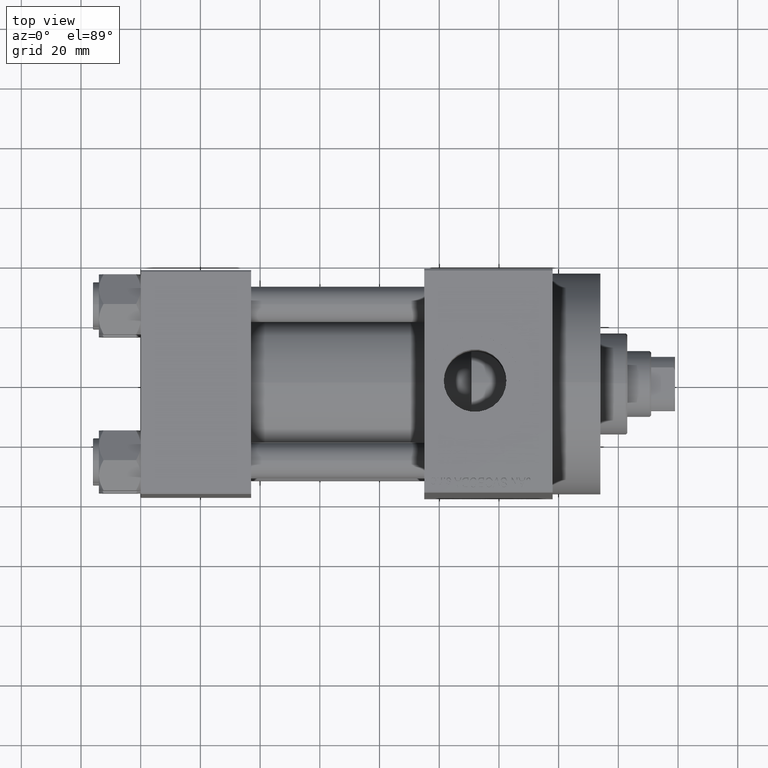
[diagram: clean part render]
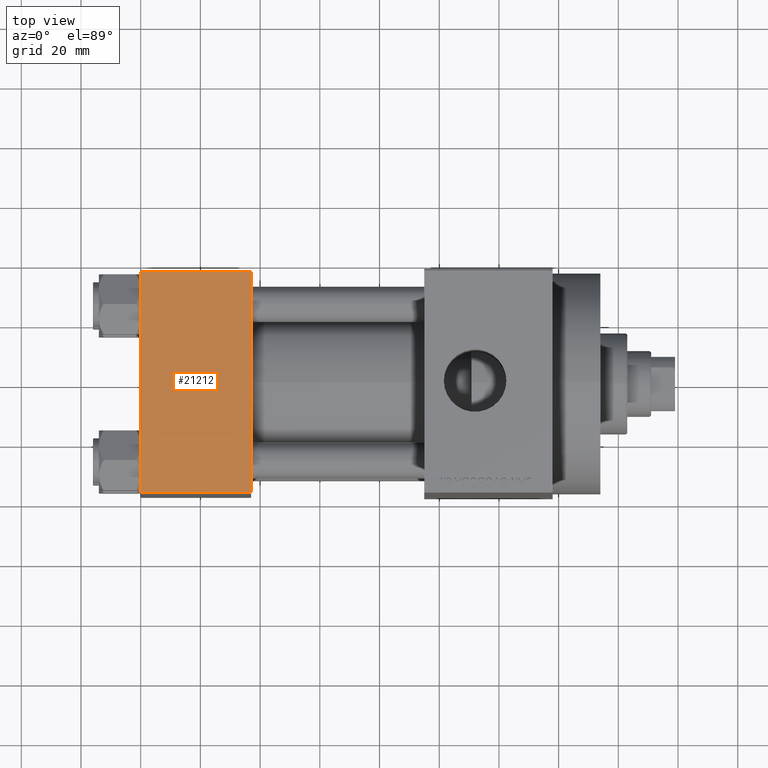
[diagram: same view with one face highlighted and labeled with its STEP entity id]
A machine part, top view. The second image highlights one B-rep face of the part: STEP entity #21212.
In plain terms, the highlighted planar face has unit normal (0, 0, -1).
Its self-contained STEP definition (entity closure, byte-faithful):
#290 = VERTEX_POINT ( 'NONE', #26928 ) ;
#1400 = LINE ( 'NONE', #9728, #16781 ) ;
#1744 = CARTESIAN_POINT ( 'NONE',  ( 37.00000000000000000, -37.00000000000000711, 37.49999999999999289 ) ) ;
#3611 = CARTESIAN_POINT ( 'NONE',  ( 37.00000000000000000, 36.99999999999999289, 37.50000000000000000 ) ) ;
#4306 = CARTESIAN_POINT ( 'NONE',  ( 37.00000000000000000, 37.49999999999999289, 37.50000000000000000 ) ) ;
#8682 = DIRECTION ( 'NONE',  ( 1.000000000000000000, 0.000000000000000000, 0.000000000000000000 ) ) ;
#9728 = CARTESIAN_POINT ( 'NONE',  ( 0.000000000000000000, 37.49999999999999289, 37.50000000000000000 ) ) ;
#13411 = VERTEX_POINT ( 'NONE', #3611 ) ;
#16733 = PLANE ( 'NONE',  #29881 ) ;
#16781 = VECTOR ( 'NONE', #37905, 1000.000000000000000 ) ;
#17181 = DIRECTION ( 'NONE',  ( 0.000000000000000000, 9.251858538542971581E-17, -1.000000000000000000 ) ) ;
#17773 = EDGE_CURVE ( 'NONE', #20742, #29694, #1400, .T. ) ;
#20742 = VERTEX_POINT ( 'NONE', #21658 ) ;
#21212 = ADVANCED_FACE ( 'NONE', ( #28180 ), #16733, .F. ) ;
#21658 = CARTESIAN_POINT ( 'NONE',  ( 0.000000000000000000, 36.99999999999999289, 37.50000000000000000 ) ) ;
#24350 = CARTESIAN_POINT ( 'NONE',  ( 37.00000000000000000, 37.49999999999999289, 37.50000000000000000 ) ) ;
#25508 = ORIENTED_EDGE ( 'NONE', *, *, #17773, .T. ) ;
#26928 = CARTESIAN_POINT ( 'NONE',  ( 37.00000000000000000, -37.00000000000000711, 37.49999999999999289 ) ) ;
#27896 = CARTESIAN_POINT ( 'NONE',  ( 0.000000000000000000, 36.99999999999999289, 37.50000000000000000 ) ) ;
#28160 = LINE ( 'NONE', #1744, #37010 ) ;
#28180 = FACE_OUTER_BOUND ( 'NONE', #37156, .T. ) ;
#29694 = VERTEX_POINT ( 'NONE', #39574 ) ;
#29881 = AXIS2_PLACEMENT_3D ( 'NONE', #24350, #17181, #42737 ) ;
#31831 = ORIENTED_EDGE ( 'NONE', *, *, #43070, .T. ) ;
#34519 = ORIENTED_EDGE ( 'NONE', *, *, #35338, .T. ) ;
#35338 = EDGE_CURVE ( 'NONE', #13411, #20742, #46737, .T. ) ;
#35501 = VECTOR ( 'NONE', #42461, 1000.000000000000000 ) ;
#37010 = VECTOR ( 'NONE', #8682, 1000.000000000000000 ) ;
#37156 = EDGE_LOOP ( 'NONE', ( #25508, #31831, #40230, #34519 ) ) ;
#37235 = VECTOR ( 'NONE', #44402, 1000.000000000000000 ) ;
#37905 = DIRECTION ( 'NONE',  ( 0.000000000000000000, -1.000000000000000000, -9.251858538542971581E-17 ) ) ;
#39574 = CARTESIAN_POINT ( 'NONE',  ( 0.000000000000000000, -37.00000000000000711, 37.49999999999999289 ) ) ;
#40230 = ORIENTED_EDGE ( 'NONE', *, *, #40928, .F. ) ;
#40928 = EDGE_CURVE ( 'NONE', #13411, #290, #41298, .T. ) ;
#41298 = LINE ( 'NONE', #4306, #37235 ) ;
#42461 = DIRECTION ( 'NONE',  ( -1.000000000000000000, 0.000000000000000000, 0.000000000000000000 ) ) ;
#42737 = DIRECTION ( 'NONE',  ( 0.000000000000000000, 1.000000000000000000, 9.251858538542971581E-17 ) ) ;
#43070 = EDGE_CURVE ( 'NONE', #29694, #290, #28160, .T. ) ;
#44402 = DIRECTION ( 'NONE',  ( 0.000000000000000000, -1.000000000000000000, -9.251858538542971581E-17 ) ) ;
#46737 = LINE ( 'NONE', #27896, #35501 ) ;